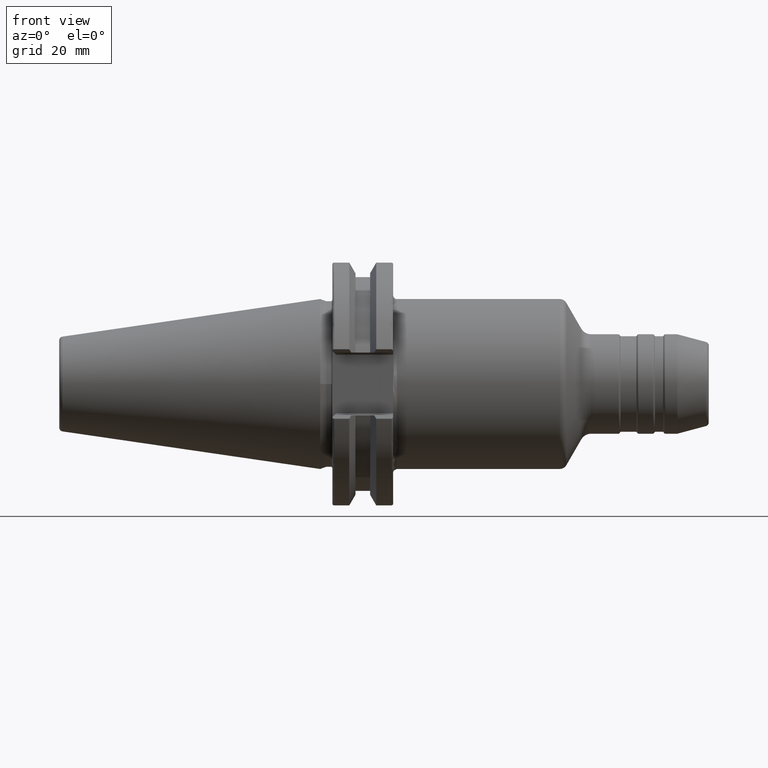
[diagram: clean part render]
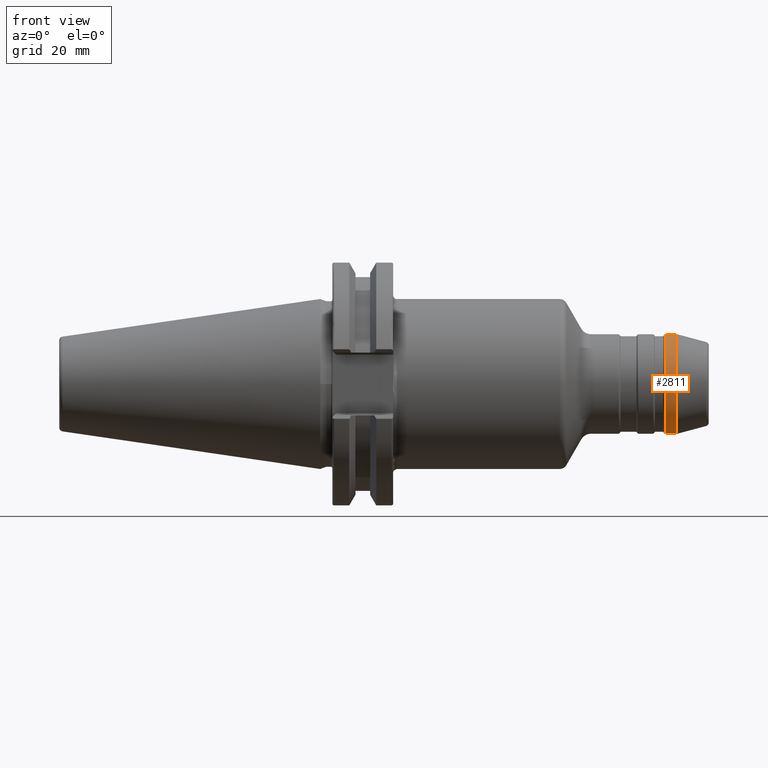
[diagram: same view with one face highlighted and labeled with its STEP entity id]
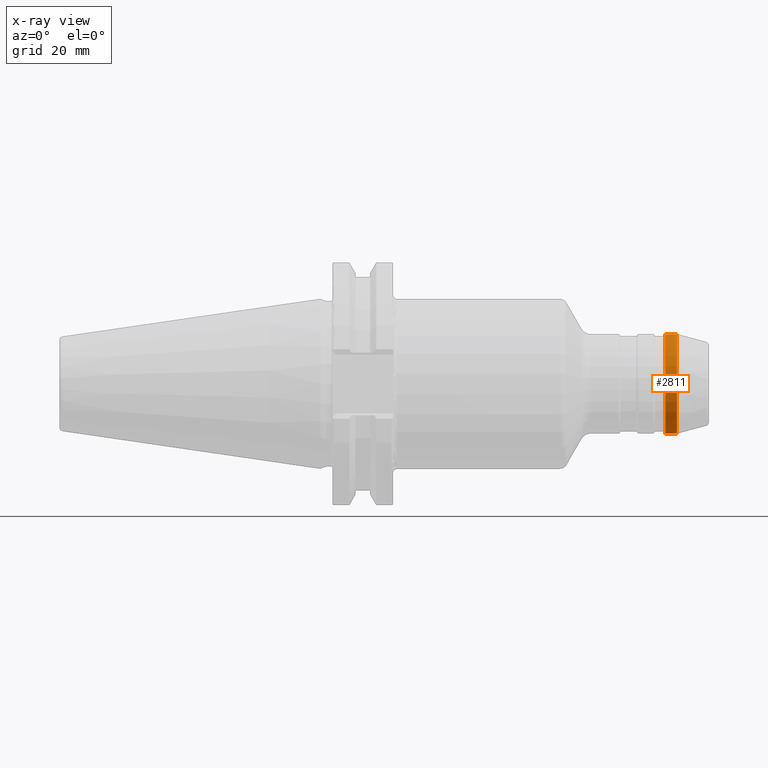
[diagram: x-ray of the same camera — body ghosted, the highlighted face saturated]
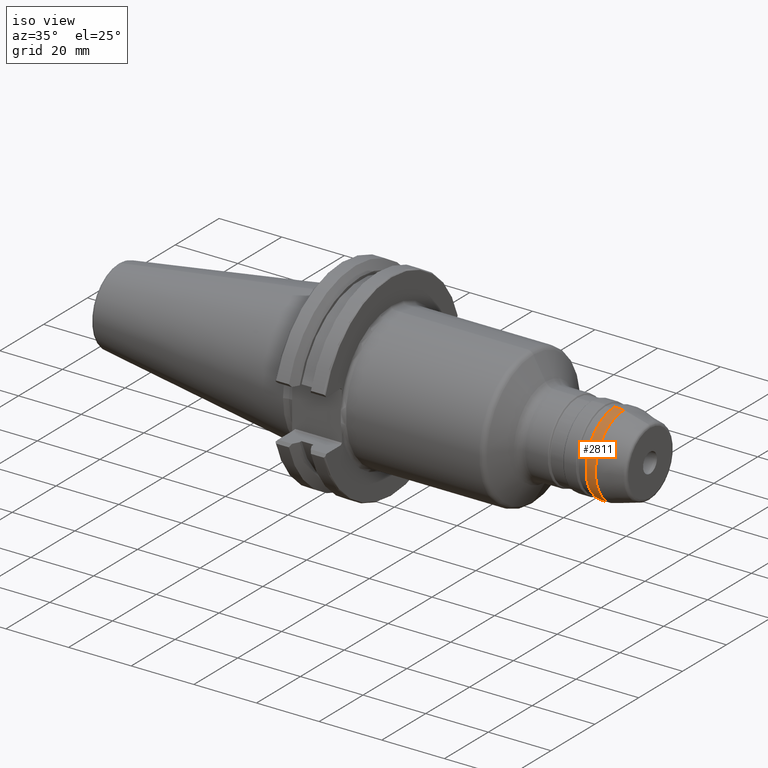
[diagram: same view with one face highlighted and labeled with its STEP entity id]
A machine part, front view. The second image highlights one B-rep face of the part: STEP entity #2811.
The next image is the same camera in x-ray: the body ghosted, the highlighted face saturated — about 0% of this face is hidden behind the body in this view.
A second angle (iso view) of the same face is appended — the face is thin or edge-on in the first view.
In plain terms, the highlighted cylindrical surface (partial cylindrical patch) has radius 13 mm, axis along (1, 0, 0).
Its self-contained STEP definition (entity closure, byte-faithful):
#612=CARTESIAN_POINT('',(9.026008529611E1,0.E0,0.E0));
#613=DIRECTION('',(-1.E0,0.E0,0.E0));
#614=DIRECTION('',(0.E0,0.E0,-1.E0));
#615=AXIS2_PLACEMENT_3D('',#612,#613,#614);
#617=DIRECTION('',(-1.E0,0.E0,0.E0));
#618=VECTOR('',#617,3.022750429654E0);
#619=CARTESIAN_POINT('',(9.328283572576E1,0.E0,-1.3E1));
#620=LINE('',#619,#618);
#621=DIRECTION('',(-1.E0,0.E0,0.E0));
#622=VECTOR('',#621,3.022750429654E0);
#623=CARTESIAN_POINT('',(9.328283572576E1,0.E0,1.3E1));
#624=LINE('',#623,#622);
#625=CARTESIAN_POINT('',(9.328283572576E1,0.E0,0.E0));
#626=DIRECTION('',(-1.E0,0.E0,0.E0));
#627=DIRECTION('',(0.E0,0.E0,-1.E0));
#628=AXIS2_PLACEMENT_3D('',#625,#626,#627);
#1746=CARTESIAN_POINT('',(9.328283572576E1,0.E0,-1.3E1));
#1747=VERTEX_POINT('',#1746);
#1748=CARTESIAN_POINT('',(9.026008529611E1,0.E0,-1.3E1));
#1749=VERTEX_POINT('',#1748);
#1804=CARTESIAN_POINT('',(9.328283572576E1,0.E0,1.3E1));
#1805=VERTEX_POINT('',#1804);
#1806=CARTESIAN_POINT('',(9.026008529611E1,0.E0,1.3E1));
#1807=VERTEX_POINT('',#1806);
#2797=CARTESIAN_POINT('',(1.49475E1,0.E0,0.E0));
#2798=DIRECTION('',(1.E0,0.E0,0.E0));
#2799=DIRECTION('',(0.E0,0.E0,1.E0));
#2800=AXIS2_PLACEMENT_3D('',#2797,#2798,#2799);
#2801=CYLINDRICAL_SURFACE('',#2800,1.3E1);
#2803=ORIENTED_EDGE('',*,*,#2802,.T.);
#2804=ORIENTED_EDGE('',*,*,#2792,.T.);
#2806=ORIENTED_EDGE('',*,*,#2805,.F.);
#2808=ORIENTED_EDGE('',*,*,#2807,.F.);
#2809=EDGE_LOOP('',(#2803,#2804,#2806,#2808));
#2810=FACE_OUTER_BOUND('',#2809,.F.);
#2811=ADVANCED_FACE('',(#2810),#2801,.T.);
#616=CIRCLE('',#615,1.3E1);
#629=CIRCLE('',#628,1.3E1);
#2792=EDGE_CURVE('',#1749,#1807,#616,.T.);
#2802=EDGE_CURVE('',#1747,#1749,#620,.T.);
#2805=EDGE_CURVE('',#1805,#1807,#624,.T.);
#2807=EDGE_CURVE('',#1747,#1805,#629,.T.);